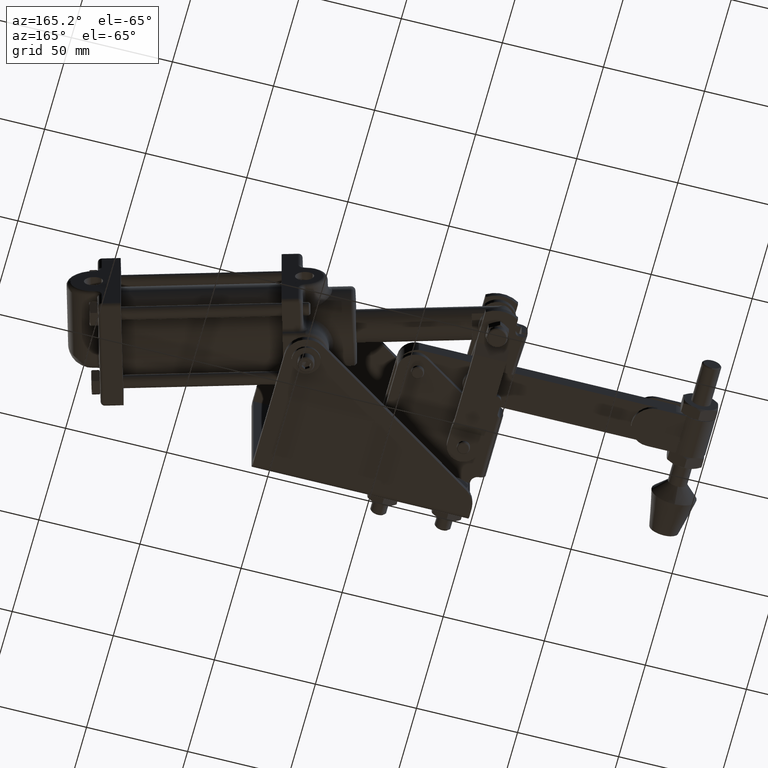
[diagram: clean part render]
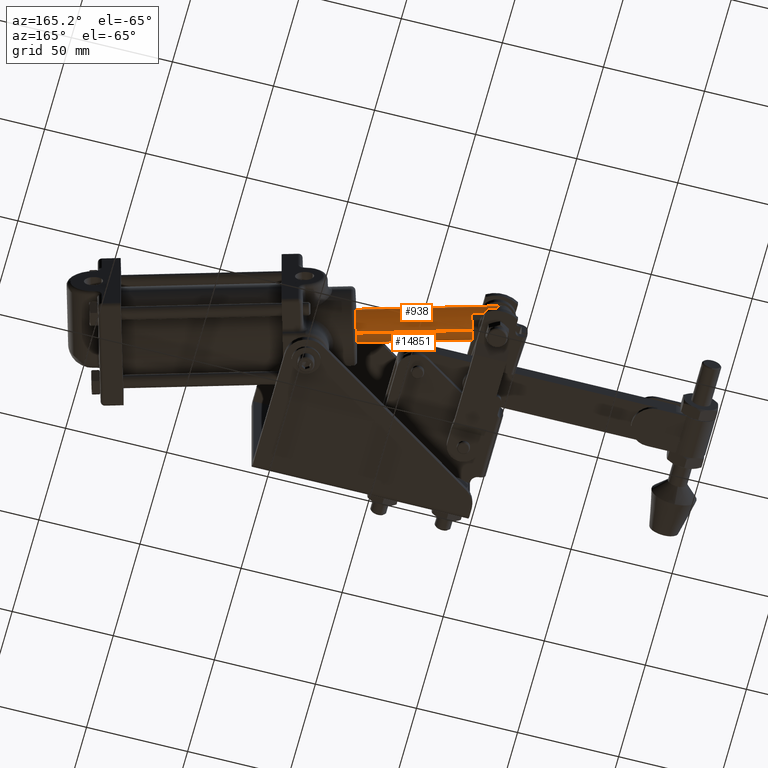
[diagram: same view with one multi-face feature highlighted, each face labeled with its STEP entity id]
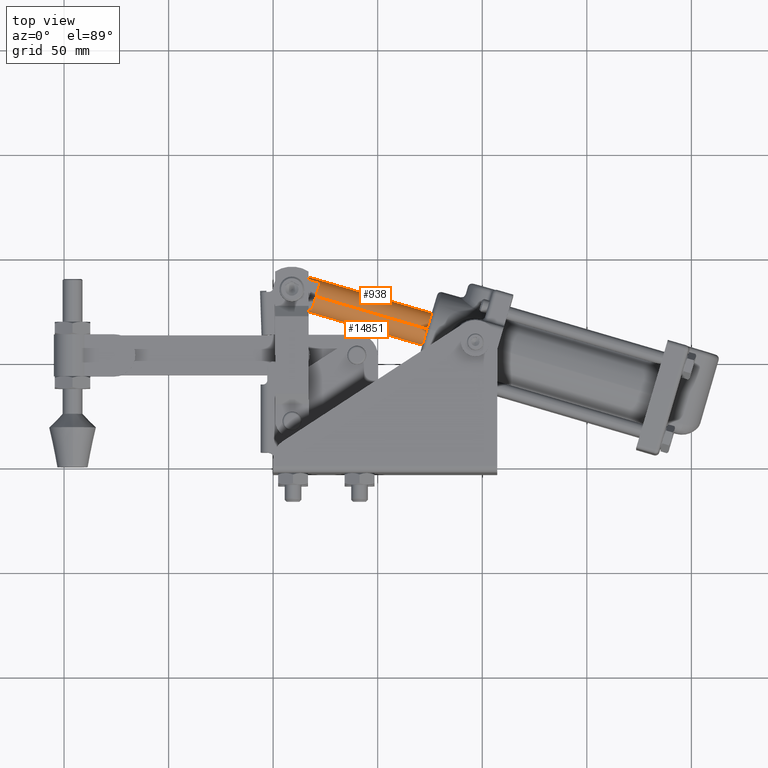
[diagram: same view with one multi-face feature highlighted, each face labeled with its STEP entity id]
A machine part, auxiliary view. The highlighted faces form ONE feature: a constant-radius fillet chain: 2 tangent blend faces with common blend radius 8 mm. The faces share edges in the B-rep.
A second angle (top view) of the same feature is appended — it is thin or edge-on in the first view.
Their STEP definitions:
[1] entity #938 (Cylinder):
#407 = CARTESIAN_POINT ( 'NONE',  ( -29.54687402250692700, 81.62759246262376700, 8.000000000000017800 ) ) ;
#429 = VECTOR ( 'NONE', #2397, 1000.000000000000100 ) ;
#498 = EDGE_CURVE ( 'NONE', #7240, #24596, #12406, .T. ) ;
#595 = EDGE_CURVE ( 'NONE', #32002, #17815, #23088, .T. ) ;
#851 = DIRECTION ( 'NONE',  ( 0.0000000000000000000, 0.0000000000000000000, -1.000000000000000000 ) ) ;
#899 = AXIS2_PLACEMENT_3D ( 'NONE', #30942, #15839, #851 ) ;
#938 = ADVANCED_FACE ( 'NONE', ( #19096 ), #12456, .T. ) ;
#1684 = ORIENTED_EDGE ( 'NONE', *, *, #8613, .T. ) ;
#1813 = LINE ( 'NONE', #10158, #15150 ) ;
#2397 = DIRECTION ( 'NONE',  ( -0.9596985987848241100, 0.2810313140745089300, 2.000102180355121900E-016 ) ) ;
#2722 = EDGE_CURVE ( 'NONE', #20020, #18450, #12414, .T. ) ;
#3585 = DIRECTION ( 'NONE',  ( 0.9596985987848242200, -0.2810313140745089300, -2.000102180355122200E-016 ) ) ;
#4618 = CARTESIAN_POINT ( 'NONE',  ( -42.95500954508449400, 92.77308042000783000, 4.000000000000010700 ) ) ;
#4986 = EDGE_CURVE ( 'NONE', #13323, #20020, #20422, .T. ) ;
#7240 = VERTEX_POINT ( 'NONE', #17433 ) ;
#7847 = AXIS2_PLACEMENT_3D ( 'NONE', #24058, #9014, #26616 ) ;
#8412 = VECTOR ( 'NONE', #27590, 1000.000000000000100 ) ;
#8613 = EDGE_CURVE ( 'NONE', #13323, #32002, #1813, .T. ) ;
#9014 = DIRECTION ( 'NONE',  ( 0.9596985987848242200, -0.2810313140745089300, -2.000102180355122200E-016 ) ) ;
#9033 = DIRECTION ( 'NONE',  ( -0.9596985987848241100, 0.2810313140745089300, 2.000102180355121900E-016 ) ) ;
#9116 = EDGE_CURVE ( 'NONE', #24596, #22281, #24434, .T. ) ;
#9620 = ORIENTED_EDGE ( 'NONE', *, *, #2722, .F. ) ;
#10158 = CARTESIAN_POINT ( 'NONE',  ( 83.69756063410230200, 48.46589740183173200, -8.000000000000003600 ) ) ;
#10408 = CARTESIAN_POINT ( 'NONE',  ( -29.54687402250691300, 81.62759246262376700, -7.999999999999979600 ) ) ;
#10804 = CARTESIAN_POINT ( 'NONE',  ( 59.70509566448170300, 55.49168025369445400, -7.999999999999998200 ) ) ;
#11098 = DIRECTION ( 'NONE',  ( -0.9596985987848240000, 0.2810313140745088800, 2.000102180355121700E-016 ) ) ;
#11612 = VECTOR ( 'NONE', #9033, 1000.000000000000100 ) ;
#12252 = CARTESIAN_POINT ( 'NONE',  ( -42.95500954508449400, 92.77308042000783000, 4.000000000000010700 ) ) ;
#12406 =( BOUNDED_CURVE ( )  B_SPLINE_CURVE ( 3, ( #13747, #21193, #18661, #31369 ),
 .UNSPECIFIED., .F., .F. ) 
 B_SPLINE_CURVE_WITH_KNOTS ( ( 4, 4 ),
 ( 1.047197551196598500, 1.570796326794896600 ),
 .UNSPECIFIED. ) 
 CURVE ( )  GEOMETRIC_REPRESENTATION_ITEM ( )  RATIONAL_B_SPLINE_CURVE ( ( 1.000000000000000000, 0.9772838841927122800, 0.9772838841927122800, 1.000000000000000000 ) ) 
 REPRESENTATION_ITEM ( '' )  );
#12414 = LINE ( 'NONE', #29162, #11612 ) ;
#12456 = CYLINDRICAL_SURFACE ( 'NONE', #25100, 7.999999999999998200 ) ;
#13209 = ORIENTED_EDGE ( 'NONE', *, *, #16545, .T. ) ;
#13323 = VERTEX_POINT ( 'NONE', #10804 ) ;
#13613 = DIRECTION ( 'NONE',  ( 0.0000000000000000000, 0.0000000000000000000, 1.000000000000000000 ) ) ;
#13747 = CARTESIAN_POINT ( 'NONE',  ( -42.95500954508451500, 92.77308042000783000, -3.999999999999964500 ) ) ;
#14068 = CARTESIAN_POINT ( 'NONE',  ( -27.59983196452734000, 88.27657939481568400, 4.000000000000018700 ) ) ;
#14589 = CARTESIAN_POINT ( 'NONE',  ( -38.81500669532874100, 92.67755702179647400, 2.042858864510990900E-014 ) ) ;
#15150 = VECTOR ( 'NONE', #30293, 1000.000000000000100 ) ;
#15203 = ORIENTED_EDGE ( 'NONE', *, *, #26335, .T. ) ;
#15702 = ORIENTED_EDGE ( 'NONE', *, *, #29284, .T. ) ;
#15839 = DIRECTION ( 'NONE',  ( 0.9596985987848241100, -0.2810313140745088800, -2.000102180355121900E-016 ) ) ;
#16265 = ORIENTED_EDGE ( 'NONE', *, *, #595, .T. ) ;
#16545 = EDGE_CURVE ( 'NONE', #17815, #7240, #26360, .T. ) ;
#16637 = LINE ( 'NONE', #17655, #8412 ) ;
#17433 = CARTESIAN_POINT ( 'NONE',  ( -42.95500954508451500, 92.77308042000783000, -3.999999999999964500 ) ) ;
#17655 = CARTESIAN_POINT ( 'NONE',  ( 85.64460269208190400, 55.11488433402364300, 3.999999999999965400 ) ) ;
#17815 = VERTEX_POINT ( 'NONE', #18861 ) ;
#18350 = CARTESIAN_POINT ( 'NONE',  ( -38.81500669532874100, 92.67755702179647400, 2.042858864510990900E-014 ) ) ;
#18450 = VERTEX_POINT ( 'NONE', #407 ) ;
#18580 = CARTESIAN_POINT ( 'NONE',  ( 59.70509566448170300, 55.49168025369445400, -5.724842486155624300E-016 ) ) ;
#18661 = CARTESIAN_POINT ( 'NONE',  ( -40.17053653439296600, 93.07450074185796000, -1.412453702423438000 ) ) ;
#18694 = VERTEX_POINT ( 'NONE', #14068 ) ;
#18861 = CARTESIAN_POINT ( 'NONE',  ( -27.59983196452734700, 88.27657939481567000, -3.999999999999968000 ) ) ;
#19080 = ORIENTED_EDGE ( 'NONE', *, *, #9116, .T. ) ;
#19096 = FACE_OUTER_BOUND ( 'NONE', #30483, .T. ) ;
#19470 = CARTESIAN_POINT ( 'NONE',  ( 59.70509566448170300, 55.49168025369445400, 7.999999999999998200 ) ) ;
#19641 = CARTESIAN_POINT ( 'NONE',  ( -41.58261440883631400, 93.10708199409401700, 2.776779212031903000 ) ) ;
#19958 = CARTESIAN_POINT ( 'NONE',  ( 85.64460269208190400, 55.11488433402364300, -3.999999999999988000 ) ) ;
#20020 = VERTEX_POINT ( 'NONE', #19470 ) ;
#20422 = CIRCLE ( 'NONE', #29129, 7.999999999999998200 ) ;
#21116 = DIRECTION ( 'NONE',  ( 0.0000000000000000000, 0.0000000000000000000, -1.000000000000000000 ) ) ;
#21193 = CARTESIAN_POINT ( 'NONE',  ( -41.58261440883632100, 93.10708199409401700, -2.776779212031871500 ) ) ;
#21861 = ORIENTED_EDGE ( 'NONE', *, *, #4986, .F. ) ;
#22281 = VERTEX_POINT ( 'NONE', #12252 ) ;
#23088 = CIRCLE ( 'NONE', #7847, 7.999999999999998200 ) ;
#24058 = CARTESIAN_POINT ( 'NONE',  ( -29.54687402250692700, 81.62759246262378100, 1.802846602868707000E-014 ) ) ;
#24434 =( BOUNDED_CURVE ( )  B_SPLINE_CURVE ( 3, ( #14589, #29701, #19641, #4618 ),
 .UNSPECIFIED., .F., .T. ) 
 B_SPLINE_CURVE_WITH_KNOTS ( ( 4, 4 ),
 ( 4.712388980384689700, 5.235987755982986200 ),
 .UNSPECIFIED. ) 
 CURVE ( )  GEOMETRIC_REPRESENTATION_ITEM ( )  RATIONAL_B_SPLINE_CURVE ( ( 1.000000000000000000, 0.9772838841927123900, 0.9772838841927123900, 1.000000000000000000 ) ) 
 REPRESENTATION_ITEM ( '' )  );
#24596 = VERTEX_POINT ( 'NONE', #18350 ) ;
#24979 = ORIENTED_EDGE ( 'NONE', *, *, #498, .T. ) ;
#25100 = AXIS2_PLACEMENT_3D ( 'NONE', #31234, #11098, #13613 ) ;
#26335 = EDGE_CURVE ( 'NONE', #18694, #18450, #26691, .T. ) ;
#26360 = LINE ( 'NONE', #19958, #429 ) ;
#26616 = DIRECTION ( 'NONE',  ( 0.0000000000000000000, 0.0000000000000000000, -1.000000000000000000 ) ) ;
#26691 = CIRCLE ( 'NONE', #899, 7.999999999999998200 ) ;
#27590 = DIRECTION ( 'NONE',  ( 0.9596985987848241100, -0.2810313140745089300, -2.000102180355121900E-016 ) ) ;
#29129 = AXIS2_PLACEMENT_3D ( 'NONE', #18580, #3585, #21116 ) ;
#29162 = CARTESIAN_POINT ( 'NONE',  ( 83.69756063410230200, 48.46589740183173200, 7.999999999999992900 ) ) ;
#29284 = EDGE_CURVE ( 'NONE', #22281, #18694, #16637, .T. ) ;
#29701 = CARTESIAN_POINT ( 'NONE',  ( -40.17053653439297300, 93.07450074185794600, 1.412453702423473100 ) ) ;
#30293 = DIRECTION ( 'NONE',  ( -0.9596985987848241100, 0.2810313140745089300, 2.000102180355121900E-016 ) ) ;
#30483 = EDGE_LOOP ( 'NONE', ( #21861, #1684, #16265, #13209, #24979, #19080, #15702, #15203, #9620 ) ) ;
#30942 = CARTESIAN_POINT ( 'NONE',  ( -29.54687402250692700, 81.62759246262378100, 1.802846602868707000E-014 ) ) ;
#31234 = CARTESIAN_POINT ( 'NONE',  ( 83.69756063410230200, 48.46589740183173200, -5.572739699503369400E-015 ) ) ;
#31369 = CARTESIAN_POINT ( 'NONE',  ( -38.81500669532874100, 92.67755702179647400, 2.042858864510990900E-014 ) ) ;
#32002 = VERTEX_POINT ( 'NONE', #10408 ) ;
[2] entity #14851 (Cylinder):
#407 = CARTESIAN_POINT ( 'NONE',  ( -29.54687402250692700, 81.62759246262376700, 8.000000000000017800 ) ) ;
#623 = CYLINDRICAL_SURFACE ( 'NONE', #4860, 7.999999999999998200 ) ;
#821 = EDGE_CURVE ( 'NONE', #26150, #18921, #12368, .T. ) ;
#1813 = LINE ( 'NONE', #10158, #15150 ) ;
#2351 = CARTESIAN_POINT ( 'NONE',  ( -31.49391608048651700, 74.97860553043186400, -3.999999999999968000 ) ) ;
#2722 = EDGE_CURVE ( 'NONE', #20020, #18450, #12414, .T. ) ;
#3564 = VERTEX_POINT ( 'NONE', #2351 ) ;
#3802 = CARTESIAN_POINT ( 'NONE',  ( -43.31150772052087900, 77.32237944123929200, 2.042858864511652000E-014 ) ) ;
#4215 = CARTESIAN_POINT ( 'NONE',  ( -29.54687402250692700, 81.62759246262378100, 1.802846602868707000E-014 ) ) ;
#4860 = AXIS2_PLACEMENT_3D ( 'NONE', #20219, #17592, #25281 ) ;
#5062 = EDGE_CURVE ( 'NONE', #18450, #15496, #16496, .T. ) ;
#5135 = CARTESIAN_POINT ( 'NONE',  ( -46.84909366104368200, 79.47510655562402300, -3.999999999999964500 ) ) ;
#5386 = CARTESIAN_POINT ( 'NONE',  ( -44.66703755958509700, 77.71932316130077800, 1.412453702423472200 ) ) ;
#5568 = LINE ( 'NONE', #30574, #24798 ) ;
#6314 = CARTESIAN_POINT ( 'NONE',  ( -45.87364224485695300, 78.45357829064597900, -2.776779212031860400 ) ) ;
#6348 = ORIENTED_EDGE ( 'NONE', *, *, #821, .T. ) ;
#6419 = DIRECTION ( 'NONE',  ( 0.9596985987848241100, -0.2810313140745088800, -2.000102180355121900E-016 ) ) ;
#6723 = DIRECTION ( 'NONE',  ( 0.0000000000000000000, 0.0000000000000000000, -1.000000000000000000 ) ) ;
#7251 = AXIS2_PLACEMENT_3D ( 'NONE', #14405, #32018, #16936 ) ;
#7372 = VERTEX_POINT ( 'NONE', #5135 ) ;
#7478 = CIRCLE ( 'NONE', #7251, 7.999999999999998200 ) ;
#7922 = CARTESIAN_POINT ( 'NONE',  ( -46.84909366104366800, 79.47510655562400900, 4.000000000000010700 ) ) ;
#8064 = FACE_OUTER_BOUND ( 'NONE', #22604, .T. ) ;
#8613 = EDGE_CURVE ( 'NONE', #13323, #32002, #1813, .T. ) ;
#9033 = DIRECTION ( 'NONE',  ( -0.9596985987848241100, 0.2810313140745089300, 2.000102180355121900E-016 ) ) ;
#10158 = CARTESIAN_POINT ( 'NONE',  ( 83.69756063410230200, 48.46589740183173200, -8.000000000000003600 ) ) ;
#10178 = AXIS2_PLACEMENT_3D ( 'NONE', #4215, #21730, #6723 ) ;
#10345 = CARTESIAN_POINT ( 'NONE',  ( 81.75051857612273000, 41.81691046963982900, -3.999999999999988000 ) ) ;
#10408 = CARTESIAN_POINT ( 'NONE',  ( -29.54687402250691300, 81.62759246262376700, -7.999999999999979600 ) ) ;
#10454 = CARTESIAN_POINT ( 'NONE',  ( -43.31150772052087900, 77.32237944123929200, 2.042858864511652000E-014 ) ) ;
#10680 = ORIENTED_EDGE ( 'NONE', *, *, #5062, .T. ) ;
#10804 = CARTESIAN_POINT ( 'NONE',  ( 59.70509566448170300, 55.49168025369445400, -7.999999999999998200 ) ) ;
#11612 = VECTOR ( 'NONE', #9033, 1000.000000000000100 ) ;
#11629 = AXIS2_PLACEMENT_3D ( 'NONE', #21424, #6419, #23974 ) ;
#12350 = CARTESIAN_POINT ( 'NONE',  ( -46.84909366104366800, 79.47510655562400900, 4.000000000000010700 ) ) ;
#12368 =( BOUNDED_CURVE ( )  B_SPLINE_CURVE ( 3, ( #7922, #22943, #5386, #10454 ),
 .UNSPECIFIED., .F., .F. ) 
 B_SPLINE_CURVE_WITH_KNOTS ( ( 4, 4 ),
 ( 1.047197551196600700, 1.570796326794896800 ),
 .UNSPECIFIED. ) 
 CURVE ( )  GEOMETRIC_REPRESENTATION_ITEM ( )  RATIONAL_B_SPLINE_CURVE ( ( 1.000000000000000000, 0.9772838841927123900, 0.9772838841927123900, 1.000000000000000000 ) ) 
 REPRESENTATION_ITEM ( '' )  );
#12414 = LINE ( 'NONE', #29162, #11612 ) ;
#12429 = CARTESIAN_POINT ( 'NONE',  ( -43.31150772052087900, 77.32237944123929200, 2.042858864511652000E-014 ) ) ;
#13323 = VERTEX_POINT ( 'NONE', #10804 ) ;
#14405 = CARTESIAN_POINT ( 'NONE',  ( 59.70509566448170300, 55.49168025369445400, -5.724842486155624300E-016 ) ) ;
#14705 = ORIENTED_EDGE ( 'NONE', *, *, #8613, .F. ) ;
#14851 = ADVANCED_FACE ( 'NONE', ( #8064 ), #623, .T. ) ;
#15150 = VECTOR ( 'NONE', #30293, 1000.000000000000100 ) ;
#15496 = VERTEX_POINT ( 'NONE', #30628 ) ;
#16086 = EDGE_CURVE ( 'NONE', #15496, #26150, #5568, .T. ) ;
#16496 = CIRCLE ( 'NONE', #11629, 7.999999999999998200 ) ;
#16862 = ORIENTED_EDGE ( 'NONE', *, *, #17360, .F. ) ;
#16921 =( BOUNDED_CURVE ( )  B_SPLINE_CURVE ( 3, ( #3802, #18802, #6314, #23870 ),
 .UNSPECIFIED., .F., .T. ) 
 B_SPLINE_CURVE_WITH_KNOTS ( ( 4, 4 ),
 ( 4.712388980384689700, 5.235987755982986200 ),
 .UNSPECIFIED. ) 
 CURVE ( )  GEOMETRIC_REPRESENTATION_ITEM ( )  RATIONAL_B_SPLINE_CURVE ( ( 1.000000000000000000, 0.9772838841927123900, 0.9772838841927123900, 1.000000000000000000 ) ) 
 REPRESENTATION_ITEM ( '' )  );
#16936 = DIRECTION ( 'NONE',  ( 0.0000000000000000000, 0.0000000000000000000, -1.000000000000000000 ) ) ;
#17360 = EDGE_CURVE ( 'NONE', #20020, #13323, #7478, .T. ) ;
#17592 = DIRECTION ( 'NONE',  ( -0.9596985987848240000, 0.2810313140745088800, 2.000102180355121700E-016 ) ) ;
#17766 = DIRECTION ( 'NONE',  ( 0.9596985987848241100, -0.2810313140745089300, -2.000102180355121900E-016 ) ) ;
#17995 = DIRECTION ( 'NONE',  ( -0.9596985987848241100, 0.2810313140745089300, 2.000102180355121900E-016 ) ) ;
#18355 = ORIENTED_EDGE ( 'NONE', *, *, #30236, .T. ) ;
#18450 = VERTEX_POINT ( 'NONE', #407 ) ;
#18802 = CARTESIAN_POINT ( 'NONE',  ( -44.66703755958510400, 77.71932316130077800, -1.412453702423432000 ) ) ;
#18921 = VERTEX_POINT ( 'NONE', #12429 ) ;
#19047 = EDGE_CURVE ( 'NONE', #7372, #3564, #26575, .T. ) ;
#19470 = CARTESIAN_POINT ( 'NONE',  ( 59.70509566448170300, 55.49168025369445400, 7.999999999999998200 ) ) ;
#19844 = VECTOR ( 'NONE', #17766, 1000.000000000000100 ) ;
#20020 = VERTEX_POINT ( 'NONE', #19470 ) ;
#20219 = CARTESIAN_POINT ( 'NONE',  ( 83.69756063410230200, 48.46589740183173200, -5.572739699503369400E-015 ) ) ;
#21008 = EDGE_CURVE ( 'NONE', #3564, #32002, #22898, .T. ) ;
#21424 = CARTESIAN_POINT ( 'NONE',  ( -29.54687402250692700, 81.62759246262378100, 1.802846602868707000E-014 ) ) ;
#21730 = DIRECTION ( 'NONE',  ( 0.9596985987848242200, -0.2810313140745089300, -2.000102180355122200E-016 ) ) ;
#22604 = EDGE_LOOP ( 'NONE', ( #14705, #16862, #25411, #10680, #31648, #6348, #18355, #30027, #30055 ) ) ;
#22898 = CIRCLE ( 'NONE', #10178, 7.999999999999998200 ) ;
#22943 = CARTESIAN_POINT ( 'NONE',  ( -45.87364224485695300, 78.45357829064599300, 2.776779212031900400 ) ) ;
#23870 = CARTESIAN_POINT ( 'NONE',  ( -46.84909366104368200, 79.47510655562402300, -3.999999999999964500 ) ) ;
#23974 = DIRECTION ( 'NONE',  ( 0.0000000000000000000, 0.0000000000000000000, -1.000000000000000000 ) ) ;
#24798 = VECTOR ( 'NONE', #17995, 1000.000000000000100 ) ;
#25281 = DIRECTION ( 'NONE',  ( 0.0000000000000000000, 0.0000000000000000000, 1.000000000000000000 ) ) ;
#25411 = ORIENTED_EDGE ( 'NONE', *, *, #2722, .T. ) ;
#26150 = VERTEX_POINT ( 'NONE', #12350 ) ;
#26575 = LINE ( 'NONE', #10345, #19844 ) ;
#29162 = CARTESIAN_POINT ( 'NONE',  ( 83.69756063410230200, 48.46589740183173200, 7.999999999999992900 ) ) ;
#30027 = ORIENTED_EDGE ( 'NONE', *, *, #19047, .T. ) ;
#30055 = ORIENTED_EDGE ( 'NONE', *, *, #21008, .T. ) ;
#30236 = EDGE_CURVE ( 'NONE', #18921, #7372, #16921, .T. ) ;
#30293 = DIRECTION ( 'NONE',  ( -0.9596985987848241100, 0.2810313140745089300, 2.000102180355121900E-016 ) ) ;
#30574 = CARTESIAN_POINT ( 'NONE',  ( 81.75051857612273000, 41.81691046963982900, 3.999999999999965400 ) ) ;
#30628 = CARTESIAN_POINT ( 'NONE',  ( -31.49391608048651700, 74.97860553043186400, 4.000000000000018700 ) ) ;
#31648 = ORIENTED_EDGE ( 'NONE', *, *, #16086, .T. ) ;
#32002 = VERTEX_POINT ( 'NONE', #10408 ) ;
#32018 = DIRECTION ( 'NONE',  ( 0.9596985987848242200, -0.2810313140745089300, -2.000102180355122200E-016 ) ) ;